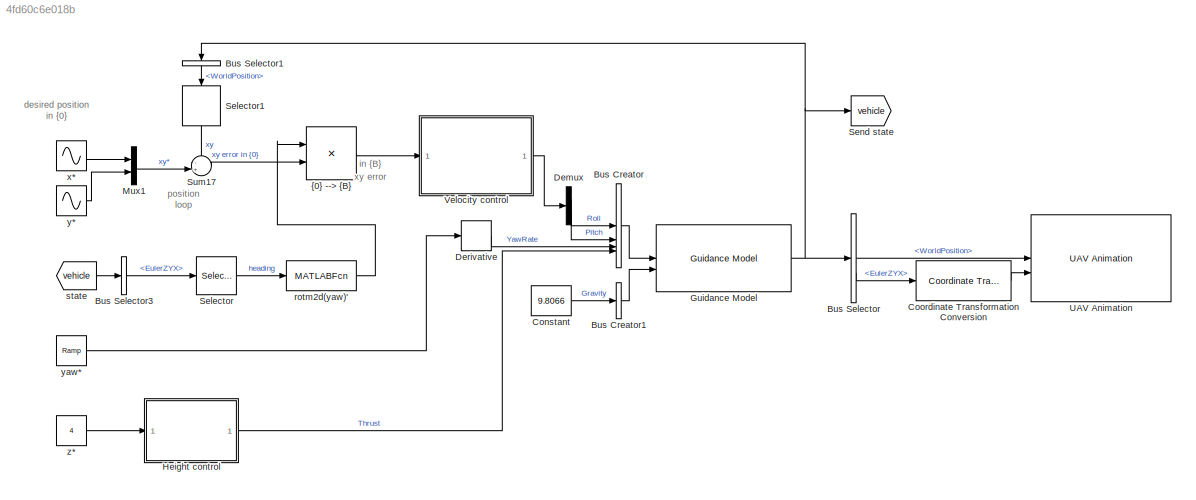
MODEL slx_4fd60c6e018b
KIND model
CONFIG AbsTol = auto
CONFIG EnableMultiTasking = on
CONFIG FixedStep = auto
CONFIG MaxStep = 0.1
CONFIG MinStep = auto
CONFIG PreLoadFcn = % load parameters of the default quadrotor\ndisp('Quadrotor parameters loaded by PreLoadFcn')\nmdl_quadrotor
CONFIG RelTol = 1e-3
CONFIG SampleTimeConstraint = Unconstrained
CONFIG SolverName = VariableStepAuto
CONFIG StartFcn = f = findall(groot,'Name','UAV Animation');\nif (length(f) > 1)\n   f = f(1);\nend\n\n% Fix plot axes limits\nax = f.findobj("Type", "Axes");\nax.ZLim = [0 6];\nax.XLim = [-5 5];\nax.YLim = [-5 5];\nax.XLabel.String = 'x';\nax.YLabel.String = 'y';\nax.ZLabel.String = 'z (height above ground)';\n
CONFIG StartTime = 0.0
CONFIG StopTime = 10
BLOCK [BusCreator] Bus Creator
  DisplayOption = bar
  InheritFromInputs = on
  Inputs = 4
  NonVirtualBus = on
  OutDataTypeStr = Bus: MultirotorGuidanceControlBus
BLOCK [BusCreator] Bus Creator1
  DisplayOption = bar
  InheritFromInputs = on
  Inputs = 1
  NonVirtualBus = on
  OutDataTypeStr = Bus: MultirotorGuidanceEnvironmentBus
BLOCK [BusSelector] Bus Selector
  OutputSignals = WorldPosition,EulerZYX
BLOCK [BusSelector] Bus Selector1
  NameLocation = left
  OutputSignals = WorldPosition
BLOCK [BusSelector] Bus Selector3
  OutputSignals = EulerZYX
BLOCK [Constant] Constant
  Value = 9.8066
BLOCK [Reference] Coordinate Transformation Conversion  REF=robotcorelib/Coordinate Transformation Conversion
  SourceBlock = robotcorelib/Coordinate Transformation Conversion
  SourceType = robotics.slcore.internal.block.CoordinateTransformationConversion
BLOCK [Demux] Demux
  Outputs = 2
BLOCK [Derivative] Derivative
BLOCK [Reference] Guidance Model  REF=uavalgslib/Guidance Model
  SourceBlock = uavalgslib/Guidance Model
  SourceType = Guidance Model
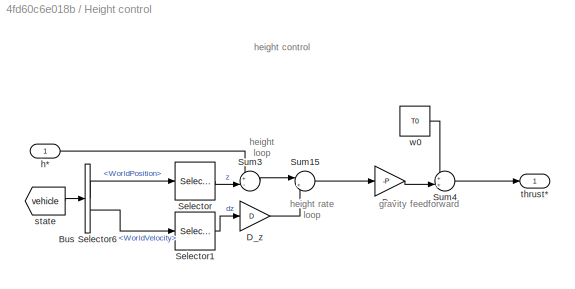
BLOCK [SubSystem] Height control
BLOCK [BusSelector] Height control/Bus Selector6
  OutputSignals = WorldPosition,WorldVelocity
BLOCK [Gain] Height control/D_z
  Gain = D
BLOCK [Gain] Height control/P_z
  Gain = -P
BLOCK [Selector] Height control/Selector
  IndexOptions = Index vector (dialog)
  Indices = [3]
  InputPortWidth = 3
  OutputSizes = 1
BLOCK [Selector] Height control/Selector1
  IndexOptions = Index vector (dialog)
  Indices = [3]
  InputPortWidth = 3
  OutputSizes = 1
BLOCK [Sum] Height control/Sum15
  Inputs = |+-
BLOCK [Sum] Height control/Sum3
  Inputs = +-|
BLOCK [Sum] Height control/Sum4
  Inputs = ++|
BLOCK [Inport] Height control/h*
BLOCK [From] Height control/state
  GotoTag = vehicle
  IconDisplay = Tag and signal name
  TagVisibility = global
BLOCK [Outport] Height control/thrust*
BLOCK [Constant] Height control/w0
  SampleTime = 0
  Value = T0
BLOCK [Mux] Mux1
  DisplayOption = bar
  Inputs = 2
BLOCK [Selector] Selector
  IndexOptions = Index vector (dialog)
  Indices = [3]
  InputPortWidth = 3
  OutputSizes = 1
BLOCK [Selector] Selector1
  IndexOptions = Index vector (dialog)
  Indices = [1 2]
  InputPortWidth = 3
  NameLocation = left
  OutputSizes = 1
BLOCK [Goto] Send state
  GotoTag = vehicle
  IconDisplay = Tag and signal name
  TagVisibility = global
BLOCK [Sum] Sum17
  Inputs = -+|
  OutDataTypeStr = Inherit: Inherit via back propagation
BLOCK [Reference] UAV Animation  REF=uavutilslib/UAV Animation
  SourceBlock = uavutilslib/UAV Animation
  SourceType = uav.sluav.internal.system.UAVAnimation
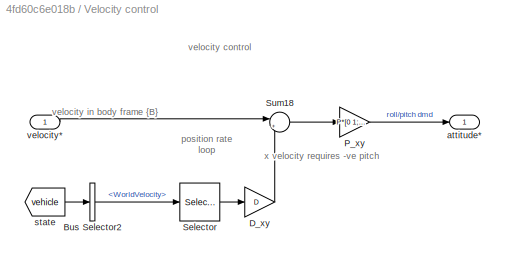
BLOCK [SubSystem] Velocity control
BLOCK [BusSelector] Velocity control/Bus Selector2
  OutputSignals = WorldVelocity
BLOCK [Gain] Velocity control/D_xy
  Gain = D
BLOCK [Gain] Velocity control/P_xy
  Gain = P*[0 1; -1 0]
  Multiplication = Matrix(K*u)
BLOCK [Selector] Velocity control/Selector
  IndexOptions = Index vector (dialog)
  Indices = [1 2]
  InputPortWidth = 3
  OutputSizes = 1
BLOCK [Sum] Velocity control/Sum18
  Inputs = |+-
BLOCK [Outport] Velocity control/attitude*
BLOCK [From] Velocity control/state
  GotoTag = vehicle
  IconDisplay = Tag and signal name
  TagVisibility = global
BLOCK [Inport] Velocity control/velocity*
BLOCK [MATLABFcn] rotm2d(yaw)'
  MATLABFcn = rotm2d(u)'
  Output1D = off
  OutputDimensions = [2 2]
BLOCK [From] state
  GotoTag = vehicle
  IconDisplay = Tag and signal name
  TagVisibility = global
BLOCK [Sin] x*
  Amplitude = 3
  Frequency = 2*pi*.125
  Phase = -pi/2
  SampleTime = 0
BLOCK [Sin] y*
  Amplitude = 3
  Frequency = 2*pi*.125
  SampleTime = 0
BLOCK [Reference] yaw*  REF=simulink/Sources/Ramp
  SourceBlock = simulink/Sources/Ramp
  SourceType = Ramp
BLOCK [Constant] z*
  SampleTime = 0
  Value = 4
BLOCK [Product] {0} --> {B}
  Multiplication = Matrix(*)
  RndMeth = Zero
ANNOTATION (root): desired position in {0}
ANNOTATION (root): position loop
ANNOTATION (root): xy error in {B}
ANNOTATION Height control: height control
ANNOTATION Height control: gravity feedforward
ANNOTATION Height control: height loop
ANNOTATION Height control: height rate loop
ANNOTATION Velocity control: velocity control
ANNOTATION Velocity control: position rate loop
ANNOTATION Velocity control: velocity in body frame {B}
ANNOTATION Velocity control: x velocity requires -ve pitch
LINE Bus Creator1:1 -> Guidance Model:2
LINE Bus Creator:1 -> Guidance Model:1
LINE Bus Selector1:1 -> Selector1:1
LINE Bus Selector3:1 -> Selector:1
LINE Bus Selector:1 -> UAV Animation:1
LINE Bus Selector:2 -> Coordinate Transformation Conversion:1
LINE Constant:1 -> Bus Creator1:1
LINE Coordinate Transformation Conversion:1 -> UAV Animation:2
LINE Demux:1 -> Bus Creator:1
LINE Demux:2 -> Bus Creator:2
LINE Derivative:1 -> Bus Creator:3
NET Guidance Model:1 -> Bus Selector1:1, Bus Selector:1, Send state:1
LINE Height control/Bus Selector6:1 -> Height control/Selector:1
LINE Height control/Bus Selector6:2 -> Height control/Selector1:1
LINE Height control/D_z:1 -> Height control/Sum15:2
LINE Height control/P_z:1 -> Height control/Sum4:2
LINE Height control/Selector1:1 -> Height control/D_z:1
LINE Height control/Selector:1 -> Height control/Sum3:2
LINE Height control/Sum15:1 -> Height control/P_z:1
LINE Height control/Sum3:1 -> Height control/Sum15:1
LINE Height control/Sum4:1 -> Height control/thrust*:1
LINE Height control/h*:1 -> Height control/Sum3:1
LINE Height control/state:1 -> Height control/Bus Selector6:1
LINE Height control/w0:1 -> Height control/Sum4:1
LINE Height control:1 -> Bus Creator:4
LINE Mux1:1 -> Sum17:2
LINE Selector1:1 -> Sum17:1
LINE Selector:1 -> rotm2d(yaw)':1
LINE Sum17:1 -> {0} --> {B}:2
LINE Velocity control/Bus Selector2:1 -> Velocity control/Selector:1
LINE Velocity control/D_xy:1 -> Velocity control/Sum18:2
LINE Velocity control/P_xy:1 -> Velocity control/attitude*:1
LINE Velocity control/Selector:1 -> Velocity control/D_xy:1
LINE Velocity control/Sum18:1 -> Velocity control/P_xy:1
LINE Velocity control/state:1 -> Velocity control/Bus Selector2:1
LINE Velocity control/velocity*:1 -> Velocity control/Sum18:1
LINE Velocity control:1 -> Demux:1
LINE rotm2d(yaw)':1 -> {0} --> {B}:1
LINE state:1 -> Bus Selector3:1
LINE x*:1 -> Mux1:1
LINE y*:1 -> Mux1:2
LINE yaw*:1 -> Derivative:1
LINE z*:1 -> Height control:1
LINE {0} --> {B}:1 -> Velocity control:1
note: NET lines group one-source signal fan-out (src -> all destinations, sorted); 1:1 wires keep LINE
